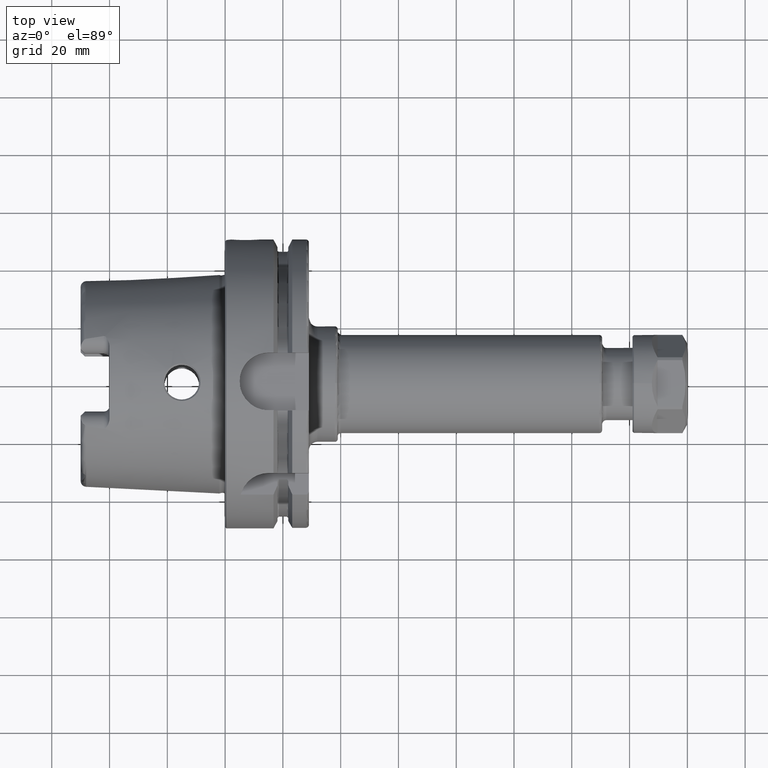
[diagram: clean part render]
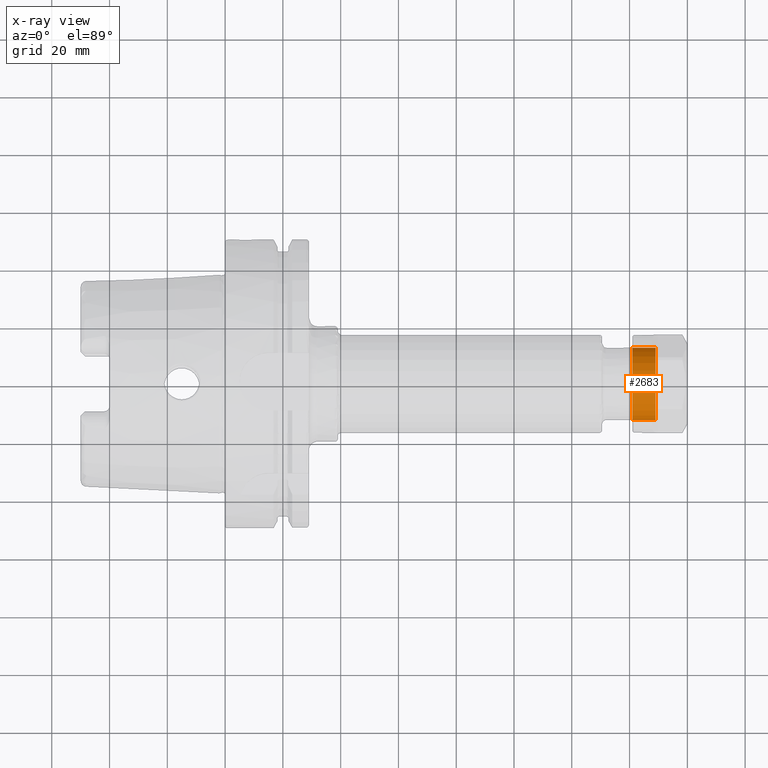
[diagram: x-ray — body ghosted, one internal face saturated and labeled with its STEP entity id]
A machine part, top view, then the same camera in x-ray: the body is ghosted and one INTERNAL B-rep face — a face not visible from any outside direction — is saturated and labeled: STEP entity #2683.
In plain terms, the highlighted cylindrical surface (bore or boss wall) has radius 12.5 mm, axis along (-1, 0, 0).
Its self-contained STEP definition (entity closure, byte-faithful):
#431=FACE_OUTER_BOUND('',#602,.T.);
#602=EDGE_LOOP('',(#2483,#2484,#2485,#2486));
#738=LINE('',#5618,#872);
#872=VECTOR('',#3910,12.5);
#1042=CIRCLE('',#3095,12.5);
#1043=CIRCLE('',#3096,12.5);
#1300=VERTEX_POINT('',#5615);
#1301=VERTEX_POINT('',#5617);
#1695=EDGE_CURVE('',#1300,#1300,#1042,.T.);
#1696=EDGE_CURVE('',#1300,#1301,#738,.T.);
#1697=EDGE_CURVE('',#1301,#1301,#1043,.T.);
#2483=ORIENTED_EDGE('',*,*,#1695,.F.);
#2484=ORIENTED_EDGE('',*,*,#1696,.T.);
#2485=ORIENTED_EDGE('',*,*,#1697,.T.);
#2486=ORIENTED_EDGE('',*,*,#1696,.F.);
#2531=CYLINDRICAL_SURFACE('',#3094,12.5);
#2683=ADVANCED_FACE('',(#431),#2531,.T.);
#3094=AXIS2_PLACEMENT_3D('',#5614,#3906,#3907);
#3095=AXIS2_PLACEMENT_3D('',#5616,#3908,#3909);
#3096=AXIS2_PLACEMENT_3D('',#5619,#3911,#3912);
#3906=DIRECTION('center_axis',(-1.,0.,0.));
#3907=DIRECTION('ref_axis',(0.,-1.,0.));
#3908=DIRECTION('center_axis',(-1.,0.,0.));
#3909=DIRECTION('ref_axis',(0.,1.,0.));
#3910=DIRECTION('',(1.,0.,0.));
#3911=DIRECTION('center_axis',(-1.,0.,0.));
#3912=DIRECTION('ref_axis',(0.,1.,0.));
#5614=CARTESIAN_POINT('Origin',(-9.5,0.,0.));
#5615=CARTESIAN_POINT('',(-9.5,12.5,-1.53080849893419E-15));
#5616=CARTESIAN_POINT('Origin',(-9.5,0.,0.));
#5617=CARTESIAN_POINT('',(-1.5,12.5,-1.53080849893419E-15));
#5618=CARTESIAN_POINT('',(-9.5,12.5,-1.53080849893419E-15));
#5619=CARTESIAN_POINT('Origin',(-1.5,0.,0.));